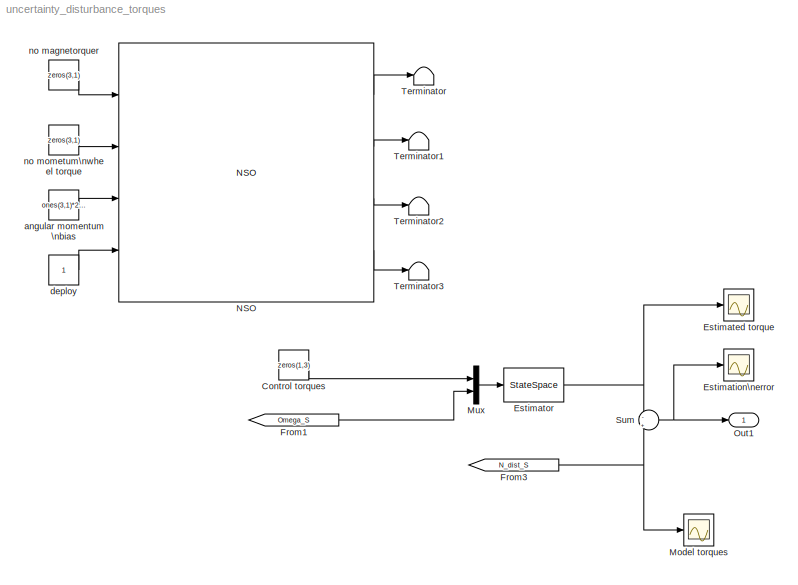
MODEL uncertainty_disturbance_torques
KIND model
BLOCK [Constant] Control torques
  Value = zeros(1,3)
BLOCK [Scope] Estimated torque
  DataFormat = StructureWithTime
  Floating = off
  NumInputPorts = 1
  Ports = [1]
  SampleTime = 0
  SaveName = ScopeData1
  YMax = 3e-006
  YMin = -2.5e-006
BLOCK [Scope] Estimation\nerror
  DataFormat = StructureWithTime
  Floating = off
  NumInputPorts = 1
  Ports = [1]
  SampleTime = 0
  YMax = 2.5e-006
  YMin = -2.5e-006
  ZoomMode = yonly
BLOCK [StateSpace] Estimator
  A = [-1.8290 -0.0532 0.0523 23.6407 0 0; 0.0523 -1.8290 -0.0532 0 23.6407 0; -0.0790 0.0780 -2.2315 0 0 35.2113; -0.0706 -0.0021 0.0022 0 0 0; 0.0020 -0.0706 -0.0023 0 0 0; -0.0023 0.0022 -0.0706 0 0 0]
  B = [-23.6407 0 0 1.8290 0.0005 0.0004; 0 -23.6407 0 0.0005 1.8290 0.0005; 0 0 -35.2113 0.0004 0.0005 2.2315; 0 0 0 0.0706 0.0021 -0.0022; 0 0 0 -0.0020 0.0706 0.0023; 0 0 0 0.0023 -0.0022 0.0706]
  C = [zeros(3) eye(3)]
  D = zeros(3,6)
BLOCK [From] From1
  CloseFcn = tagdialog Close
  GotoTag = Omega_S
BLOCK [From] From3
  CloseFcn = tagdialog Close
  GotoTag = N_dist_S
BLOCK [Scope] Model torques
  DataFormat = StructureWithTime
  Floating = off
  NumInputPorts = 1
  Ports = [1]
  SampleTime = 0
  SaveName = ScopeData2
  YMax = 7.5e-007
  YMin = -7.5e-007
BLOCK [Mux] Mux
  DisplayOption = bar
  Inputs = 2
  Ports = [2, 1]
BLOCK [Reference] NSO  REF=components_lib/NSO  (lib defined in mdl_419550584dda)
  Cd = cdrho
  Description = AAUSAT-II Model
  Dim = [0.1 0.1 0.3]
  Ports = [4, 4]
  ShowPortLabels = on
  SourceBlock = components_lib/NSO
  Tag = AAUSAT-II Model
  alb_emu_enabled = off
  enable_dist = on
  enable_sensor_emulation = off
  inertia_c = [25 25 5]/1e3
  inertia_d = Id
  init_jd = 2452315.56
  mass_sc = 3
  q_init_s_i = q_att
  q_s_c = [0 0 0 1]
  r_com_s = [0.05 0.05 0.15]
  r_com_s_deployed = [0.05 0.05 0.125]
  rho = 1
  sat_temp_start = 0
  w_init_s = [0.1 0.1 0.1]*0
BLOCK [Outport] Out1
  BusOutputAsStruct = off
  IconDisplay = Port number
BLOCK [Sum] Sum
  IconShape = round
  InputSameDT = off
  Inputs = -|+
  OutDataTypeMode = Inherit via internal rule
  Ports = [2, 1]
  SaturateOnIntegerOverflow = off
BLOCK [Terminator] Terminator
BLOCK [Terminator] Terminator1
BLOCK [Terminator] Terminator2
BLOCK [Terminator] Terminator3
BLOCK [Constant] angular momentum\nbias
  Value = ones(3,1)*2.23e-3
BLOCK [Constant] deploy
BLOCK [Constant] no magnetorquer
  Value = zeros(3,1)
BLOCK [Constant] no mometum\nwheel torque
  Value = zeros(3,1)
LINE Control torques:1 -> Mux:1
NET Estimator:1 -> Estimated torque:1, Sum:1
LINE From1:1 -> Mux:2
NET From3:1 -> Model torques:1, Sum:2
LINE Mux:1 -> Estimator:1
LINE NSO:1 -> Terminator:1
LINE NSO:2 -> Terminator1:1
LINE NSO:3 -> Terminator2:1
LINE NSO:4 -> Terminator3:1
NET Sum:1 -> Estimation\nerror:1, Out1:1
LINE angular momentum\nbias:1 -> NSO:3
LINE deploy:1 -> NSO:4
LINE no magnetorquer:1 -> NSO:1
LINE no mometum\nwheel torque:1 -> NSO:2
note: NET lines group one-source signal fan-out (src -> all destinations, sorted); 1:1 wires keep LINE
